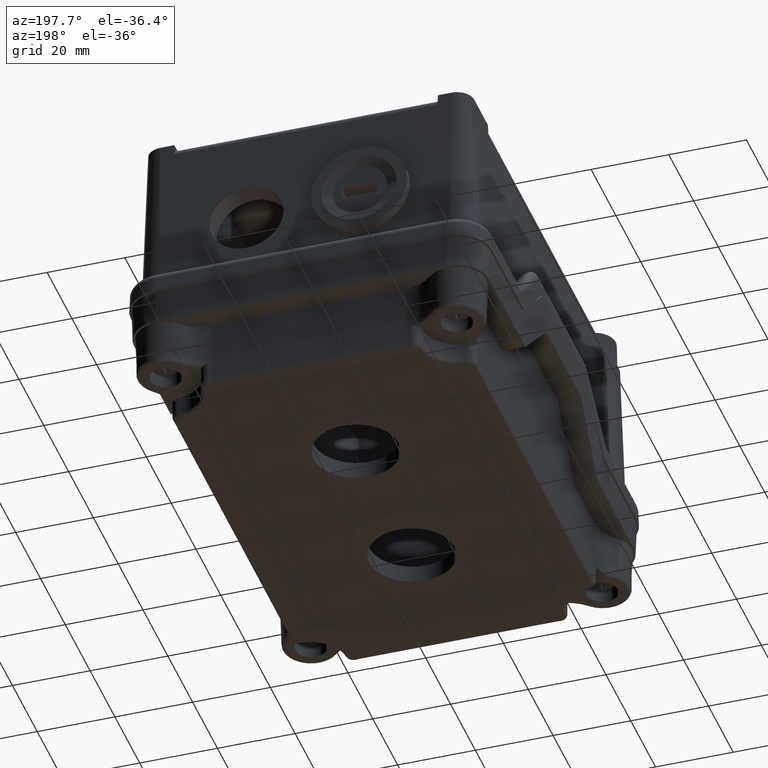
[diagram: clean part render]
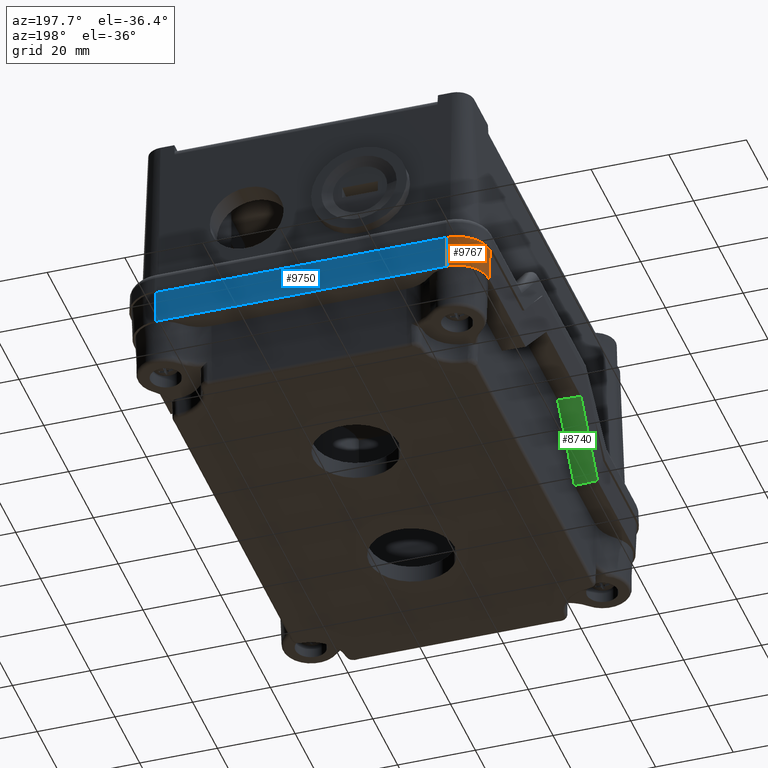
[diagram: same view with three faces highlighted in distinct colors, each labeled with its STEP entity id]
A machine part, auxiliary view with three faces highlighted in distinct colors.
Their STEP definitions:

[orange] entity #9767 — the highlighted conical surface has half-angle 2 deg.
#8852=CARTESIAN_POINT('',(83.462640443142703,49.702105119166902,23.499999999999986));
#8853=VERTEX_POINT('',#8852);
#8860=CARTESIAN_POINT('',(75.283278526198785,57.881467036110827,23.499999999999986));
#8861=VERTEX_POINT('',#8860);
#8862=CARTESIAN_POINT('',(75.283278526198785,49.702105119166902,23.499999999999986));
#8863=DIRECTION('',(0.0,0.0,-1.0));
#8864=DIRECTION('',(1.0,0.0,0.0));
#8865=AXIS2_PLACEMENT_3D('',#8862,#8863,#8864);
#8866=CIRCLE('',#8865,8.179361916943924);
#8867=EDGE_CURVE('',#8861,#8853,#8866,.T.);
#9198=CARTESIAN_POINT('',(75.283278526198785,58.178293576790679,15.000000000000002));
#9199=VERTEX_POINT('',#9198);
#9206=CARTESIAN_POINT('',(83.759466983822563,49.702105119166902,15.000000000000002));
#9207=VERTEX_POINT('',#9206);
#9208=CARTESIAN_POINT('',(75.283278526198785,49.702105119166902,15.000000000000018));
#9209=DIRECTION('',(0.0,0.0,1.0));
#9210=DIRECTION('',(1.0,0.0,0.0));
#9211=AXIS2_PLACEMENT_3D('',#9208,#9209,#9210);
#9212=CIRCLE('',#9211,8.476188457623778);
#9213=EDGE_CURVE('',#9207,#9199,#9212,.T.);
#9742=CARTESIAN_POINT('',(75.283278526198785,58.178293576790679,15.000000000000002));
#9743=DIRECTION('',(0.0,-0.034899496702501,0.999390827019096));
#9744=VECTOR('',#9743,8.505181126539968);
#9745=LINE('',#9742,#9744);
#9746=EDGE_CURVE('',#9199,#8861,#9745,.T.);
#9751=CARTESIAN_POINT('',(75.283278526198785,49.702105119166902,0.0));
#9752=DIRECTION('',(0.0,0.0,-1.0));
#9753=DIRECTION('',(1.0,0.0,0.0));
#9754=AXIS2_PLACEMENT_3D('',#9751,#9752,#9753);
#9755=CONICAL_SURFACE('',#9754,8.999999999999995,2.0);
#9756=ORIENTED_EDGE('',*,*,#9213,.T.);
#9757=ORIENTED_EDGE('',*,*,#9746,.T.);
#9758=ORIENTED_EDGE('',*,*,#8867,.T.);
#9759=CARTESIAN_POINT('',(83.759466983822563,49.702105119166902,15.000000000000002));
#9760=DIRECTION('',(-0.034899496702501,0.0,0.999390827019096));
#9761=VECTOR('',#9760,8.505181126539970);
#9762=LINE('',#9759,#9761);
#9763=EDGE_CURVE('',#9207,#8853,#9762,.T.);
#9764=ORIENTED_EDGE('',*,*,#9763,.F.);
#9765=EDGE_LOOP('',(#9756,#9757,#9758,#9764));
#9766=FACE_OUTER_BOUND('',#9765,.T.);
#9767=ADVANCED_FACE('',(#9766),#9755,.T.);

[blue] entity #9750 — the highlighted planar face has unit normal (0, 0.9994, -0.0349).
#8860=CARTESIAN_POINT('',(75.283278526198785,57.881467036110827,23.499999999999986));
#8861=VERTEX_POINT('',#8860);
#8869=CARTESIAN_POINT('',(0.283278526198750,57.881467036110834,23.499999999999986));
#8870=VERTEX_POINT('',#8869);
#8871=CARTESIAN_POINT('',(0.283278526198750,57.881467036110834,23.499999999999986));
#8872=DIRECTION('',(1.0,0.0,0.0));
#8873=VECTOR('',#8872,75.000000000000028);
#8874=LINE('',#8871,#8873);
#8875=EDGE_CURVE('',#8870,#8861,#8874,.T.);
#9189=CARTESIAN_POINT('',(0.283278526198749,58.178293576790693,15.000000000000002));
#9190=VERTEX_POINT('',#9189);
#9198=CARTESIAN_POINT('',(75.283278526198785,58.178293576790679,15.000000000000002));
#9199=VERTEX_POINT('',#9198);
#9200=CARTESIAN_POINT('',(75.283278526198785,58.178293576790679,15.000000000000002));
#9201=DIRECTION('',(-1.0,0.0,0.0));
#9202=VECTOR('',#9201,75.000000000000043);
#9203=LINE('',#9200,#9202);
#9204=EDGE_CURVE('',#9199,#9190,#9203,.T.);
#9582=CARTESIAN_POINT('',(0.283278526198749,58.178293576790693,15.000000000000002));
#9583=DIRECTION('',(7.179420E-017,-0.034899496702501,0.999390827019096));
#9584=VECTOR('',#9583,8.505181126539970);
#9585=LINE('',#9582,#9584);
#9586=EDGE_CURVE('',#9190,#8870,#9585,.T.);
#9734=CARTESIAN_POINT('',(0.283278526198748,58.702105119166902,0.0));
#9735=DIRECTION('',(0.0,0.999390827019096,0.034899496702501));
#9736=DIRECTION('',(-1.0,0.0,0.0));
#9737=AXIS2_PLACEMENT_3D('',#9734,#9735,#9736);
#9738=PLANE('',#9737);
#9739=ORIENTED_EDGE('',*,*,#9204,.T.);
#9740=ORIENTED_EDGE('',*,*,#9586,.T.);
#9741=ORIENTED_EDGE('',*,*,#8875,.T.);
#9742=CARTESIAN_POINT('',(75.283278526198785,58.178293576790679,15.000000000000002));
#9743=DIRECTION('',(0.0,-0.034899496702501,0.999390827019096));
#9744=VECTOR('',#9743,8.505181126539968);
#9745=LINE('',#9742,#9744);
#9746=EDGE_CURVE('',#9199,#8861,#9745,.T.);
#9747=ORIENTED_EDGE('',*,*,#9746,.F.);
#9748=EDGE_LOOP('',(#9739,#9740,#9741,#9747));
#9749=FACE_OUTER_BOUND('',#9748,.T.);
#9750=ADVANCED_FACE('',(#9749),#9738,.T.);

[green] entity #8740 — the highlighted planar face has unit normal (-0.0247, -0.7073, 0.7065).
#8665=CARTESIAN_POINT('',(83.462640443142732,-37.773415432838263,23.499999999999986));
#8666=VERTEX_POINT('',#8665);
#8673=CARTESIAN_POINT('',(77.462640443142703,-37.982684854070634,23.499999999999986));
#8674=VERTEX_POINT('',#8673);
#8675=CARTESIAN_POINT('',(83.462640443142732,-37.773415432838263,23.499999999999986));
#8676=DIRECTION('',(-0.999392308678630,-0.034857041670210,0.0));
#8677=VECTOR('',#8676,6.003648365008004);
#8678=LINE('',#8675,#8677);
#8679=EDGE_CURVE('',#8666,#8674,#8678,.T.);
#8710=CARTESIAN_POINT('',(83.374348623407855,-40.301762345575497,26.028346912737248));
#8711=DIRECTION('',(0.024670150858025,-0.707322189149592,-0.706460688498144));
#8712=DIRECTION('',(-0.999390827019096,0.0,-0.034899496702501));
#8713=AXIS2_PLACEMENT_3D('',#8710,#8711,#8712);
#8714=PLANE('',#8713);
#8715=ORIENTED_EDGE('',*,*,#8679,.F.);
#8716=CARTESIAN_POINT('',(83.986451985518926,-22.773415432838178,8.499999999999961));
#8717=VERTEX_POINT('',#8716);
#8718=CARTESIAN_POINT('',(83.986451985518926,-22.773415432838178,8.499999999999961));
#8719=DIRECTION('',(-0.024685188407831,-0.706891307583165,0.706891307583162));
#8720=VECTOR('',#8719,21.219669614108742);
#8721=LINE('',#8718,#8720);
#8722=EDGE_CURVE('',#8717,#8666,#8721,.T.);
#8723=ORIENTED_EDGE('',*,*,#8722,.F.);
#8724=CARTESIAN_POINT('',(77.993759834739450,-22.773415432838178,8.290730578767585));
#8725=VERTEX_POINT('',#8724);
#8726=CARTESIAN_POINT('',(83.986451985518926,-22.773415432838178,8.499999999999961));
#8727=DIRECTION('',(-0.999390827019096,0.0,-0.034899496702501));
#8728=VECTOR('',#8727,5.996344962114577);
#8729=LINE('',#8726,#8728);
#8730=EDGE_CURVE('',#8717,#8725,#8729,.T.);
#8731=ORIENTED_EDGE('',*,*,#8730,.T.);
#8732=CARTESIAN_POINT('',(77.993759834739450,-22.773415432838178,8.290730578767585));
#8733=DIRECTION('',(-0.024685188407832,-0.706891307583165,0.706891307583162));
#8734=VECTOR('',#8733,21.515711479367855);
#8735=LINE('',#8732,#8734);
#8736=EDGE_CURVE('',#8725,#8674,#8735,.T.);
#8737=ORIENTED_EDGE('',*,*,#8736,.T.);
#8738=EDGE_LOOP('',(#8715,#8723,#8731,#8737));
#8739=FACE_OUTER_BOUND('',#8738,.T.);
#8740=ADVANCED_FACE('',(#8739),#8714,.F.);